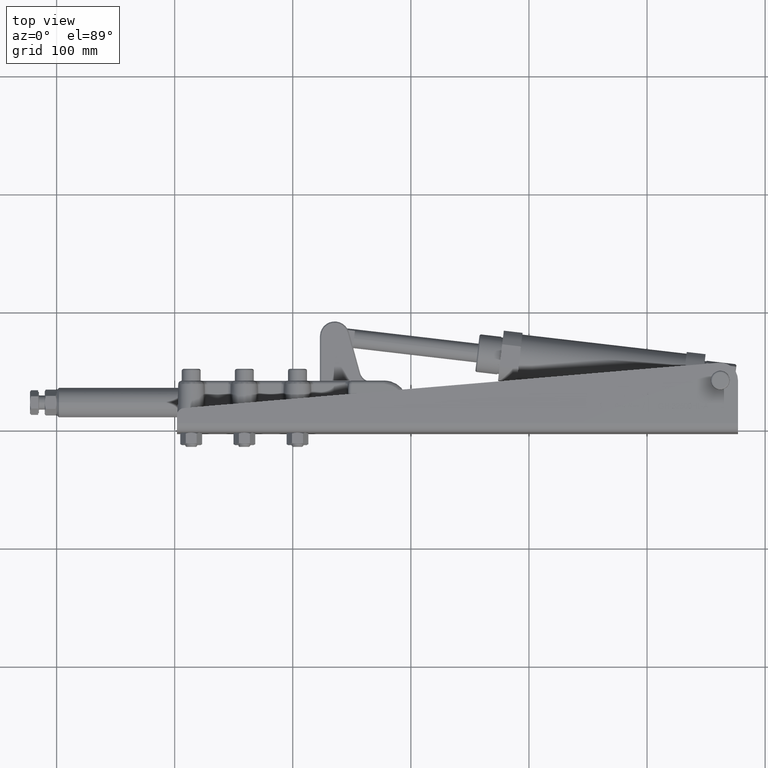
[diagram: clean part render]
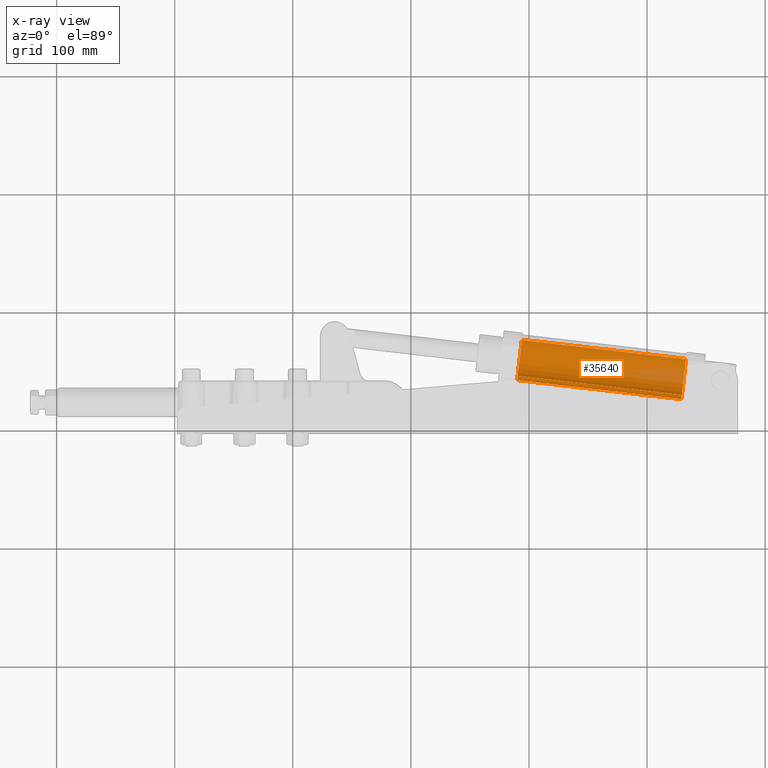
[diagram: x-ray — body ghosted, one internal face saturated and labeled with its STEP entity id]
A machine part, top view, then the same camera in x-ray: the body is ghosted and one INTERNAL B-rep face — a face not visible from any outside direction — is saturated and labeled: STEP entity #35640.
In plain terms, the highlighted cylindrical surface (edge-blend (fillet) strip) has radius 19 mm, axis along (-0.9933, 0.1156, -0).
Its self-contained STEP definition (entity closure, byte-faithful):
#1780 = CIRCLE ( 'NONE', #3404, 19.00000000000000400 ) ;
#2767 = EDGE_LOOP ( 'NONE', ( #39793, #45170, #38381, #19369 ) ) ;
#3404 = AXIS2_PLACEMENT_3D ( 'NONE', #23742, #55880, #28345 ) ;
#11687 = EDGE_CURVE ( 'NONE', #25971, #12728, #30313, .T. ) ;
#12728 = VERTEX_POINT ( 'NONE', #48400 ) ;
#15827 = CARTESIAN_POINT ( 'NONE',  ( 192.1472489757247500, 60.76262081027401500, -3.489531409987785400E-013 ) ) ;
#19369 = ORIENTED_EDGE ( 'NONE', *, *, #11687, .F. ) ;
#20505 = DIRECTION ( 'NONE',  ( -0.09453438330629304600, -0.8119889883569823000, 0.5759662604353690300 ) ) ;
#21143 = AXIS2_PLACEMENT_3D ( 'NONE', #15827, #47978, #20505 ) ;
#23742 = CARTESIAN_POINT ( 'NONE',  ( 331.2079808084648100, 44.57272080617402600, -2.796449215679710700E-013 ) ) ;
#24513 = VERTEX_POINT ( 'NONE', #25076 ) ;
#25076 = CARTESIAN_POINT ( 'NONE',  ( 333.0041340912843600, 60.00051158495669100, -10.94335894827229100 ) ) ;
#25824 = CYLINDRICAL_SURFACE ( 'NONE', #53980, 19.00000000000000400 ) ;
#25971 = VERTEX_POINT ( 'NONE', #26267 ) ;
#26267 = CARTESIAN_POINT ( 'NONE',  ( 329.4118275256452600, 29.14493002739136100, 10.94335894827173500 ) ) ;
#27180 = CARTESIAN_POINT ( 'NONE',  ( 193.9434022585443000, 76.19041158905668000, -10.94335894827236000 ) ) ;
#27269 = DIRECTION ( 'NONE',  ( -0.9932909416624289300, 0.1156421428864284800, -4.950587102200527900E-016 ) ) ;
#27369 = EDGE_CURVE ( 'NONE', #52737, #12728, #42308, .T. ) ;
#28345 = DIRECTION ( 'NONE',  ( -0.09453438330629304600, -0.8119889883569823000, 0.5759662604353690300 ) ) ;
#28812 = VECTOR ( 'NONE', #39238, 1000.000000000000100 ) ;
#30170 = DIRECTION ( 'NONE',  ( -0.9932909416624290400, 0.1156421428864284900, -4.950587102200527900E-016 ) ) ;
#30313 = LINE ( 'NONE', #59585, #45375 ) ;
#34582 = EDGE_CURVE ( 'NONE', #24513, #52737, #39575, .T. ) ;
#34760 = DIRECTION ( 'NONE',  ( -0.09453438330629304600, -0.8119889883569823000, 0.5759662604353690300 ) ) ;
#35640 = ADVANCED_FACE ( 'NONE', ( #49423 ), #25824, .F. ) ;
#38381 = ORIENTED_EDGE ( 'NONE', *, *, #27369, .T. ) ;
#39238 = DIRECTION ( 'NONE',  ( -0.9932909416624289300, 0.1156421428864284800, -4.950587102200527900E-016 ) ) ;
#39575 = LINE ( 'NONE', #48281, #28812 ) ;
#39793 = ORIENTED_EDGE ( 'NONE', *, *, #47967, .T. ) ;
#42308 = CIRCLE ( 'NONE', #21143, 19.00000000000000400 ) ;
#43793 = CARTESIAN_POINT ( 'NONE',  ( 331.2079808084648100, 44.57272080617402600, -2.796449215679710700E-013 ) ) ;
#45170 = ORIENTED_EDGE ( 'NONE', *, *, #34582, .T. ) ;
#45375 = VECTOR ( 'NONE', #27269, 1000.000000000000100 ) ;
#47967 = EDGE_CURVE ( 'NONE', #25971, #24513, #1780, .T. ) ;
#47978 = DIRECTION ( 'NONE',  ( -0.9932909416624290400, 0.1156421428864284900, -4.950587102200527900E-016 ) ) ;
#48281 = CARTESIAN_POINT ( 'NONE',  ( 333.0041340912843600, 60.00051158495669100, -10.94335894827229100 ) ) ;
#48400 = CARTESIAN_POINT ( 'NONE',  ( 190.3510956929051500, 45.33483003149135000, 10.94335894827166400 ) ) ;
#49423 = FACE_OUTER_BOUND ( 'NONE', #2767, .T. ) ;
#52737 = VERTEX_POINT ( 'NONE', #27180 ) ;
#53980 = AXIS2_PLACEMENT_3D ( 'NONE', #43793, #30170, #34760 ) ;
#55880 = DIRECTION ( 'NONE',  ( 0.9932909416624290400, -0.1156421428864284900, 4.950587102200527900E-016 ) ) ;
#59585 = CARTESIAN_POINT ( 'NONE',  ( 329.4118275256452600, 29.14493002739136100, 10.94335894827173500 ) ) ;